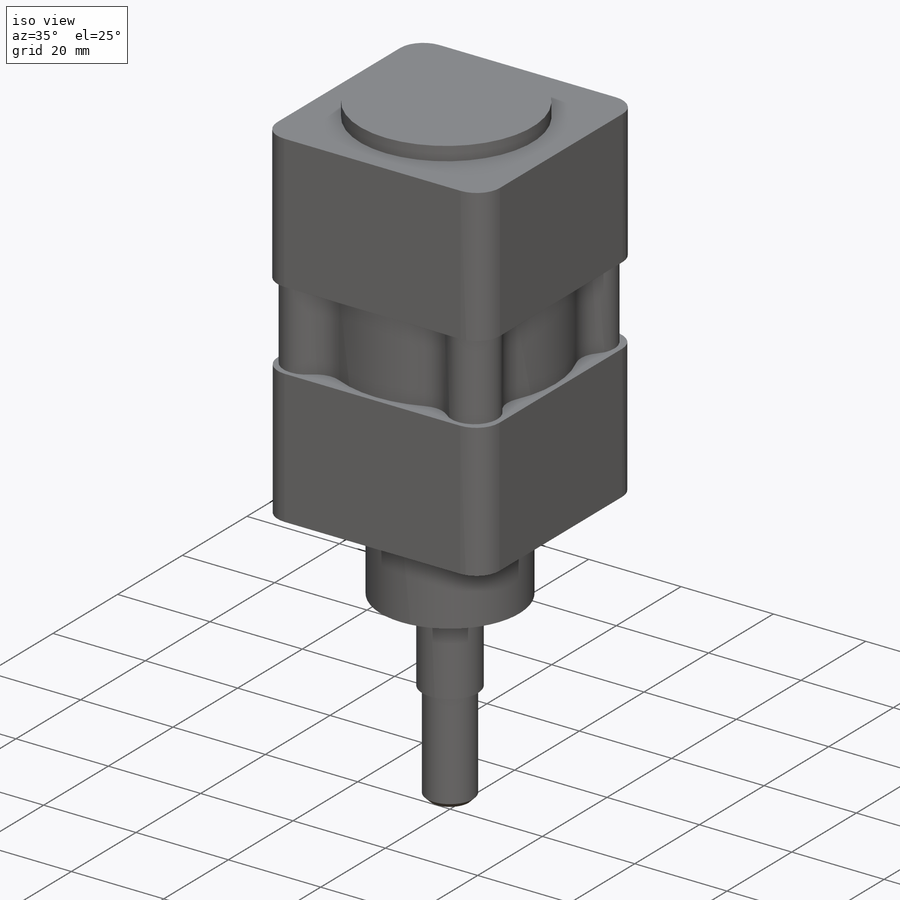
[diagram: iso view]
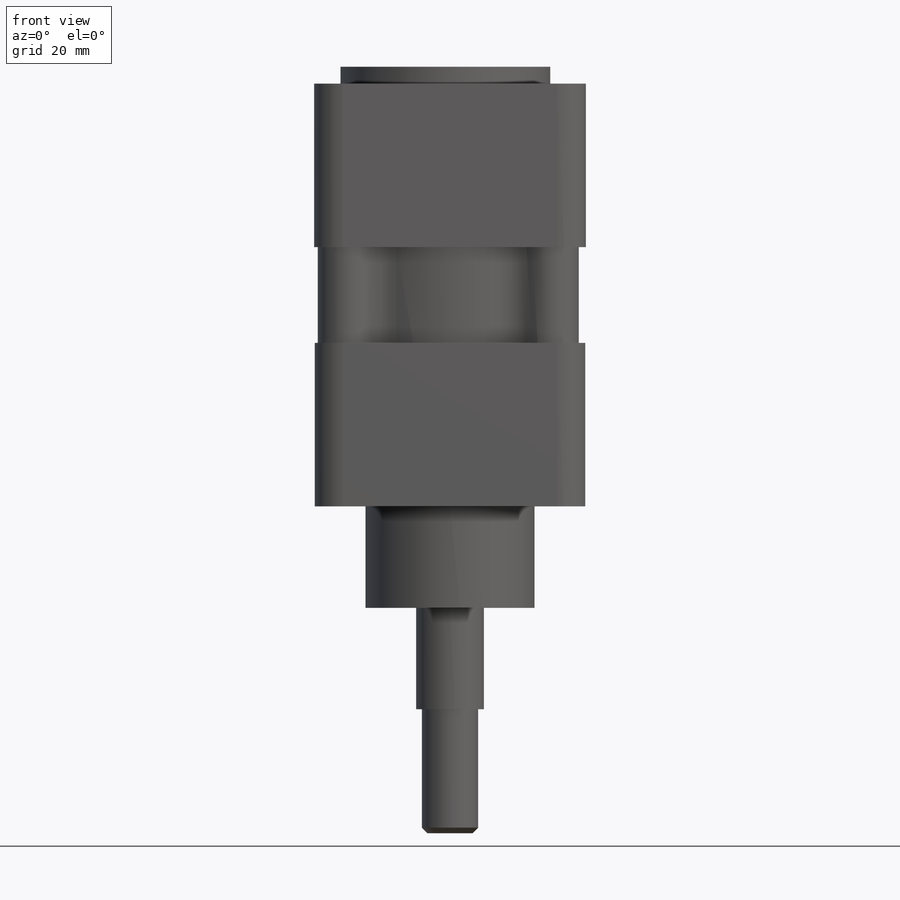
[diagram: front view]
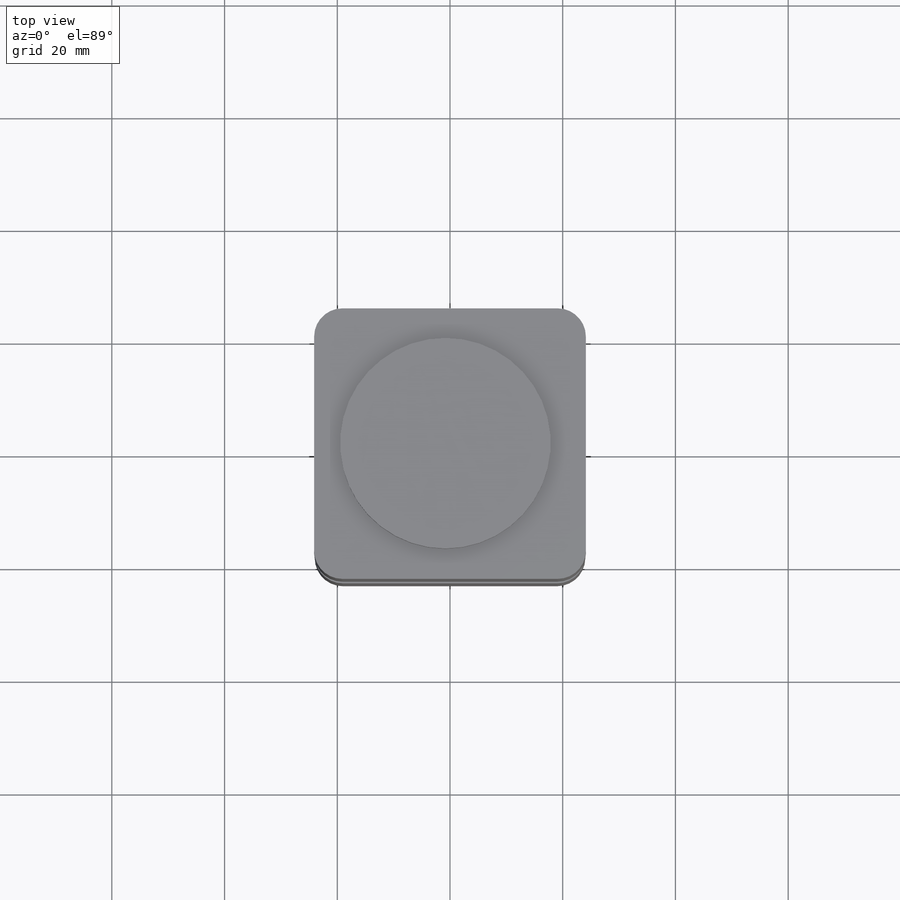
[diagram: top view]
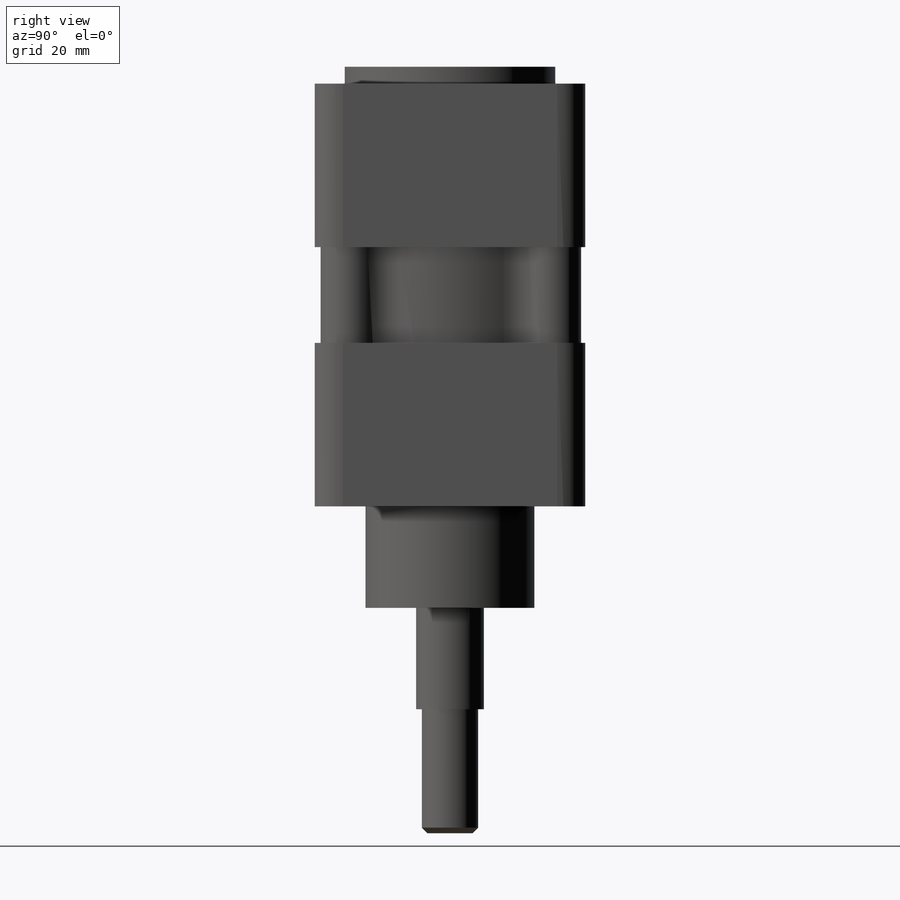
[diagram: right view]
SOLIDWORKS PART (.sldprt)
format: sldprt  version: not decoded by parser v0  size: 302,080 bytes
history: native  units: mm
features: sketch x10, extrude x8, plane x3, cut_extrude x2, material x1, fillet x1, chamfer x1 (+10 scaffold rows collapsed)
feature tree (36):
  scaffold x10  (default folders/planes/origin — collapsed)
  material  "Material <sin especificar>"
  plane  "Alzado"
  plane  "Planta"
  plane  "Vista lateral"
  sketch  "Croquis1"  dims[D3=5.0mm D1=48.0mm D2=48.0mm]
  extrude  "Saliente-Extruir1"  Depth=29mm
  sketch  "Croquis2"
  extrude  "Saliente-Extruir2"  Depth=46mm
  sketch  "Croquis3"  dims[D1=32.0mm]
  cut_extrude  "Cortar-Extruir2"  Depth=90mm
  sketch  "Croquis4"  dims[D1=10.0mm D2=10.0mm D3=10.0mm D4=10.0mm]
  extrude  "Saliente-Extruir3"  Depth=65mm
  fillet  "Redondeo1"  Radius=5mm
  sketch  "Croquis5"  dims[D1=5.0mm]
  extrude  "Saliente-Extruir4"  Depth=29mm
  sketch  "Croquis6"
  extrude  "Saliente-Extruir5"  Depth=3mm
  sketch  "Croquis7"  dims[D1=6.0mm D6=6.0mm D2=32.5mm D3=32.5mm D4=32.5mm D5=32.5mm]
  cut_extrude  "Cortar-Extruir3"  Depth=25mm
  sketch  "Croquis8"  dims[D1=30.0mm]
  extrude  "Saliente-Extruir7"  Depth=18mm
  sketch  "Croquis9"  dims[D1=12.0mm]
  extrude  "Saliente-Extruir9"  Depth=18mm
  sketch  "Croquis10"  dims[D1=10.0mm]
  extrude  "Saliente-Extruir11"  Depth=22mm
  chamfer  "Chaflán1"  Distance=1mm Angle=45deg
decode coverage: 20 of 22 modeling features carry decoded parameters
note: suppression state not decoded; provenance and decode notes live in map.json
